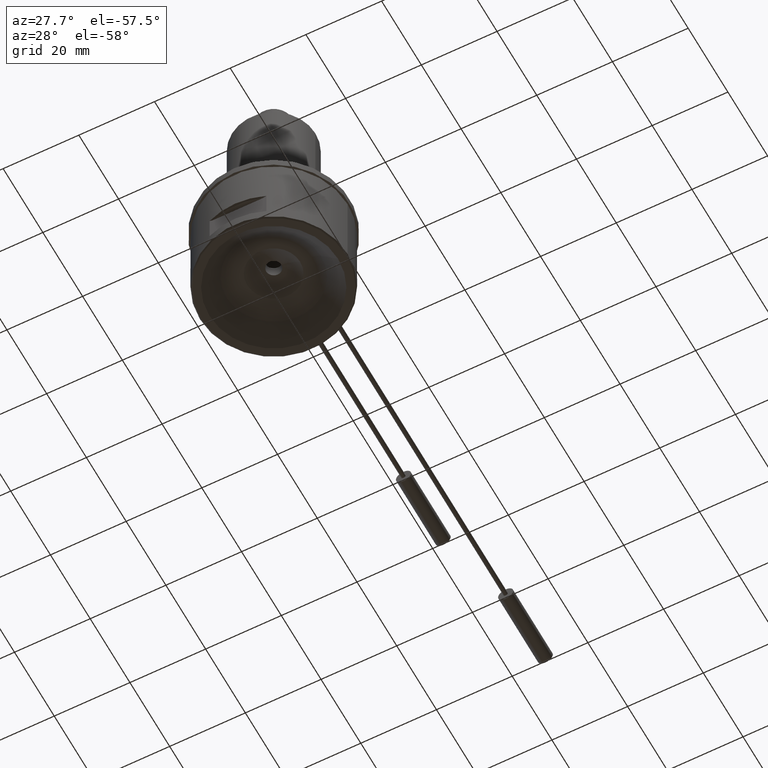
[diagram: clean part render]
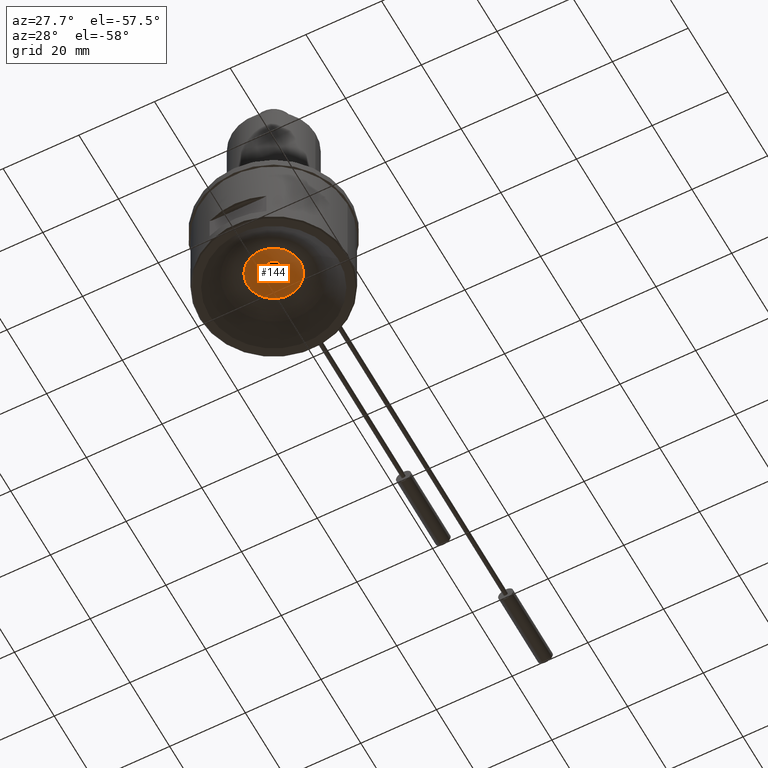
[diagram: same view with one face highlighted and labeled with its STEP entity id]
A machine part, auxiliary view. The second image highlights one B-rep face of the part: STEP entity #144.
In plain terms, the highlighted spherical surface has radius 11 mm.
Its self-contained STEP definition (entity closure, byte-faithful):
#34=SPHERICAL_SURFACE('',#1003,11.);
#144=ADVANCED_FACE('',(#326,#327),#34,.F.);
#326=FACE_BOUND('',#394,.T.);
#327=FACE_BOUND('',#395,.T.);
#394=EDGE_LOOP('',(#536));
#395=EDGE_LOOP('',(#537));
#536=ORIENTED_EDGE('',*,*,#841,.T.);
#537=ORIENTED_EDGE('',*,*,#840,.F.);
#739=VERTEX_POINT('',#1640);
#740=VERTEX_POINT('',#1643);
#840=EDGE_CURVE('',#739,#739,#926,.T.);
#841=EDGE_CURVE('',#740,#740,#927,.T.);
#926=CIRCLE('',#1000,2.00000000000749);
#927=CIRCLE('',#1002,6.98212002188452);
#1000=AXIS2_PLACEMENT_3D('',#1639,#1190,#1191);
#1002=AXIS2_PLACEMENT_3D('',#1642,#1194,#1195);
#1003=AXIS2_PLACEMENT_3D('',#1644,#1196,#1197);
#1190=DIRECTION('',(0.,0.,-1.));
#1191=DIRECTION('',(1.,0.,0.));
#1194=DIRECTION('',(0.,0.,-1.));
#1195=DIRECTION('',(1.,0.,0.));
#1196=DIRECTION('',(0.,-6.12323399573677E-17,1.));
#1197=DIRECTION('',(0.,-1.,0.));
#1639=CARTESIAN_POINT('',(0.,0.,8.31665382639197));
#1640=CARTESIAN_POINT('',(2.00000000000749,0.,8.31665382639197));
#1642=CARTESIAN_POINT('',(0.,0.,5.99999999999996));
#1643=CARTESIAN_POINT('',(6.98212002188452,0.,5.99999999999996));
#1644=CARTESIAN_POINT('',(0.,0.,-2.5));